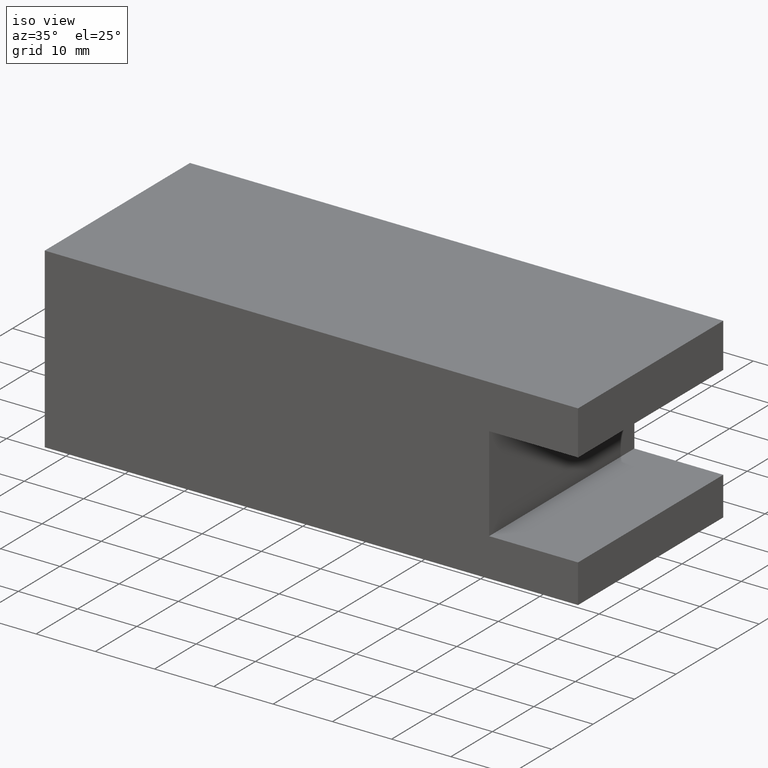
[diagram: clean part render]
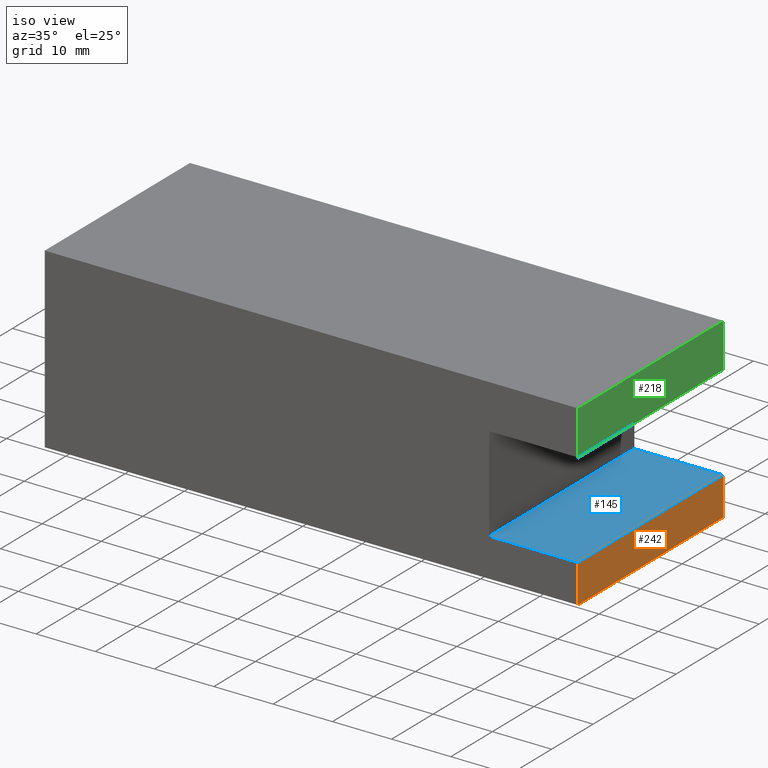
[diagram: same view with three faces highlighted in distinct colors, each labeled with its STEP entity id]
A machine part, iso view with three faces highlighted in distinct colors.
Their STEP definitions:

[orange] entity #242 — the highlighted planar face has unit normal (1, 0, 0).
#120=CARTESIAN_POINT('',(77.825283991875153,-11.961124341222451,6.499999999999988));
#121=VERTEX_POINT('',#120);
#128=CARTESIAN_POINT('',(77.825283991875153,23.038875658777531,6.499999999999988));
#129=VERTEX_POINT('',#128);
#130=CARTESIAN_POINT('',(77.825283991875153,23.038875658777531,6.499999999999988));
#131=DIRECTION('',(0.0,-1.0,0.0));
#132=VECTOR('',#131,34.999999999999986);
#133=LINE('',#130,#132);
#134=EDGE_CURVE('',#129,#121,#133,.T.);
#178=CARTESIAN_POINT('',(77.825283991875168,-11.961124341222451,0.0));
#179=VERTEX_POINT('',#178);
#186=CARTESIAN_POINT('',(77.825283991875168,-11.961124341222451,0.0));
#187=DIRECTION('',(0.0,0.0,1.0));
#188=VECTOR('',#187,6.499999999999988);
#189=LINE('',#186,#188);
#190=EDGE_CURVE('',#179,#121,#189,.T.);
#219=CARTESIAN_POINT('',(77.825283991875153,23.038875658777531,0.0));
#220=DIRECTION('',(1.0,0.0,0.0));
#221=DIRECTION('',(0.0,0.0,-1.0));
#222=AXIS2_PLACEMENT_3D('',#219,#220,#221);
#223=PLANE('',#222);
#224=ORIENTED_EDGE('',*,*,#134,.T.);
#225=ORIENTED_EDGE('',*,*,#190,.F.);
#226=CARTESIAN_POINT('',(77.825283991875153,23.038875658777531,0.0));
#227=VERTEX_POINT('',#226);
#228=CARTESIAN_POINT('',(77.825283991875168,-11.961124341222451,0.0));
#229=DIRECTION('',(0.0,1.0,0.0));
#230=VECTOR('',#229,34.999999999999986);
#231=LINE('',#228,#230);
#232=EDGE_CURVE('',#179,#227,#231,.T.);
#233=ORIENTED_EDGE('',*,*,#232,.T.);
#234=CARTESIAN_POINT('',(77.825283991875153,23.038875658777531,0.0));
#235=DIRECTION('',(0.0,0.0,1.0));
#236=VECTOR('',#235,6.499999999999988);
#237=LINE('',#234,#236);
#238=EDGE_CURVE('',#227,#129,#237,.T.);
#239=ORIENTED_EDGE('',*,*,#238,.T.);
#240=EDGE_LOOP('',(#224,#225,#233,#239));
#241=FACE_OUTER_BOUND('',#240,.T.);
#242=ADVANCED_FACE('',(#241),#223,.T.);

[blue] entity #145 — the highlighted planar face has unit normal (0, 0, -1).
#49=CARTESIAN_POINT('',(62.825283991875153,-11.961124341222455,6.499999999999990));
#50=VERTEX_POINT('',#49);
#59=CARTESIAN_POINT('',(62.825283991875139,23.038875658777531,6.499999999999990));
#60=VERTEX_POINT('',#59);
#61=CARTESIAN_POINT('',(62.825283991875139,23.038875658777531,6.499999999999990));
#62=DIRECTION('',(0.0,-1.0,0.0));
#63=VECTOR('',#62,34.999999999999986);
#64=LINE('',#61,#63);
#65=EDGE_CURVE('',#60,#50,#64,.T.);
#115=CARTESIAN_POINT('',(77.825283991875153,23.038875658777531,6.499999999999988));
#116=DIRECTION('',(0.0,0.0,-1.0));
#117=DIRECTION('',(-1.0,0.0,0.0));
#118=AXIS2_PLACEMENT_3D('',#115,#116,#117);
#119=PLANE('',#118);
#120=CARTESIAN_POINT('',(77.825283991875153,-11.961124341222451,6.499999999999988));
#121=VERTEX_POINT('',#120);
#122=CARTESIAN_POINT('',(77.825283991875153,-11.961124341222451,6.499999999999988));
#123=DIRECTION('',(-1.0,0.0,0.0));
#124=VECTOR('',#123,15.0);
#125=LINE('',#122,#124);
#126=EDGE_CURVE('',#121,#50,#125,.T.);
#127=ORIENTED_EDGE('',*,*,#126,.F.);
#128=CARTESIAN_POINT('',(77.825283991875153,23.038875658777531,6.499999999999988));
#129=VERTEX_POINT('',#128);
#130=CARTESIAN_POINT('',(77.825283991875153,23.038875658777531,6.499999999999988));
#131=DIRECTION('',(0.0,-1.0,0.0));
#132=VECTOR('',#131,34.999999999999986);
#133=LINE('',#130,#132);
#134=EDGE_CURVE('',#129,#121,#133,.T.);
#135=ORIENTED_EDGE('',*,*,#134,.F.);
#136=CARTESIAN_POINT('',(62.825283991875139,23.038875658777531,6.499999999999990));
#137=DIRECTION('',(1.0,0.0,0.0));
#138=VECTOR('',#137,15.000000000000014);
#139=LINE('',#136,#138);
#140=EDGE_CURVE('',#60,#129,#139,.T.);
#141=ORIENTED_EDGE('',*,*,#140,.F.);
#142=ORIENTED_EDGE('',*,*,#65,.T.);
#143=EDGE_LOOP('',(#127,#135,#141,#142));
#144=FACE_OUTER_BOUND('',#143,.T.);
#145=ADVANCED_FACE('',(#144),#119,.F.);

[green] entity #218 — the highlighted planar face has unit normal (1, 0, 0).
#89=CARTESIAN_POINT('',(77.825283991875168,-11.961124341222451,22.499999999999993));
#90=VERTEX_POINT('',#89);
#98=CARTESIAN_POINT('',(77.825283991875153,23.038875658777531,22.499999999999993));
#99=VERTEX_POINT('',#98);
#106=CARTESIAN_POINT('',(77.825283991875168,-11.961124341222451,22.499999999999993));
#107=DIRECTION('',(0.0,1.0,0.0));
#108=VECTOR('',#107,34.999999999999986);
#109=LINE('',#106,#108);
#110=EDGE_CURVE('',#90,#99,#109,.T.);
#154=CARTESIAN_POINT('',(77.825283991875168,-11.961124341222451,30.0));
#155=VERTEX_POINT('',#154);
#156=CARTESIAN_POINT('',(77.825283991875168,-11.961124341222451,22.499999999999993));
#157=DIRECTION('',(0.0,0.0,1.0));
#158=VECTOR('',#157,7.500000000000007);
#159=LINE('',#156,#158);
#160=EDGE_CURVE('',#90,#155,#159,.T.);
#195=CARTESIAN_POINT('',(77.825283991875153,23.038875658777531,0.0));
#196=DIRECTION('',(1.0,0.0,0.0));
#197=DIRECTION('',(0.0,0.0,-1.0));
#198=AXIS2_PLACEMENT_3D('',#195,#196,#197);
#199=PLANE('',#198);
#200=ORIENTED_EDGE('',*,*,#110,.T.);
#201=CARTESIAN_POINT('',(77.825283991875153,23.038875658777531,30.0));
#202=VERTEX_POINT('',#201);
#203=CARTESIAN_POINT('',(77.825283991875153,23.038875658777531,22.499999999999993));
#204=DIRECTION('',(0.0,0.0,1.0));
#205=VECTOR('',#204,7.500000000000007);
#206=LINE('',#203,#205);
#207=EDGE_CURVE('',#99,#202,#206,.T.);
#208=ORIENTED_EDGE('',*,*,#207,.T.);
#209=CARTESIAN_POINT('',(77.825283991875153,23.038875658777531,30.0));
#210=DIRECTION('',(0.0,-1.0,0.0));
#211=VECTOR('',#210,34.999999999999986);
#212=LINE('',#209,#211);
#213=EDGE_CURVE('',#202,#155,#212,.T.);
#214=ORIENTED_EDGE('',*,*,#213,.T.);
#215=ORIENTED_EDGE('',*,*,#160,.F.);
#216=EDGE_LOOP('',(#200,#208,#214,#215));
#217=FACE_OUTER_BOUND('',#216,.T.);
#218=ADVANCED_FACE('',(#217),#199,.T.);